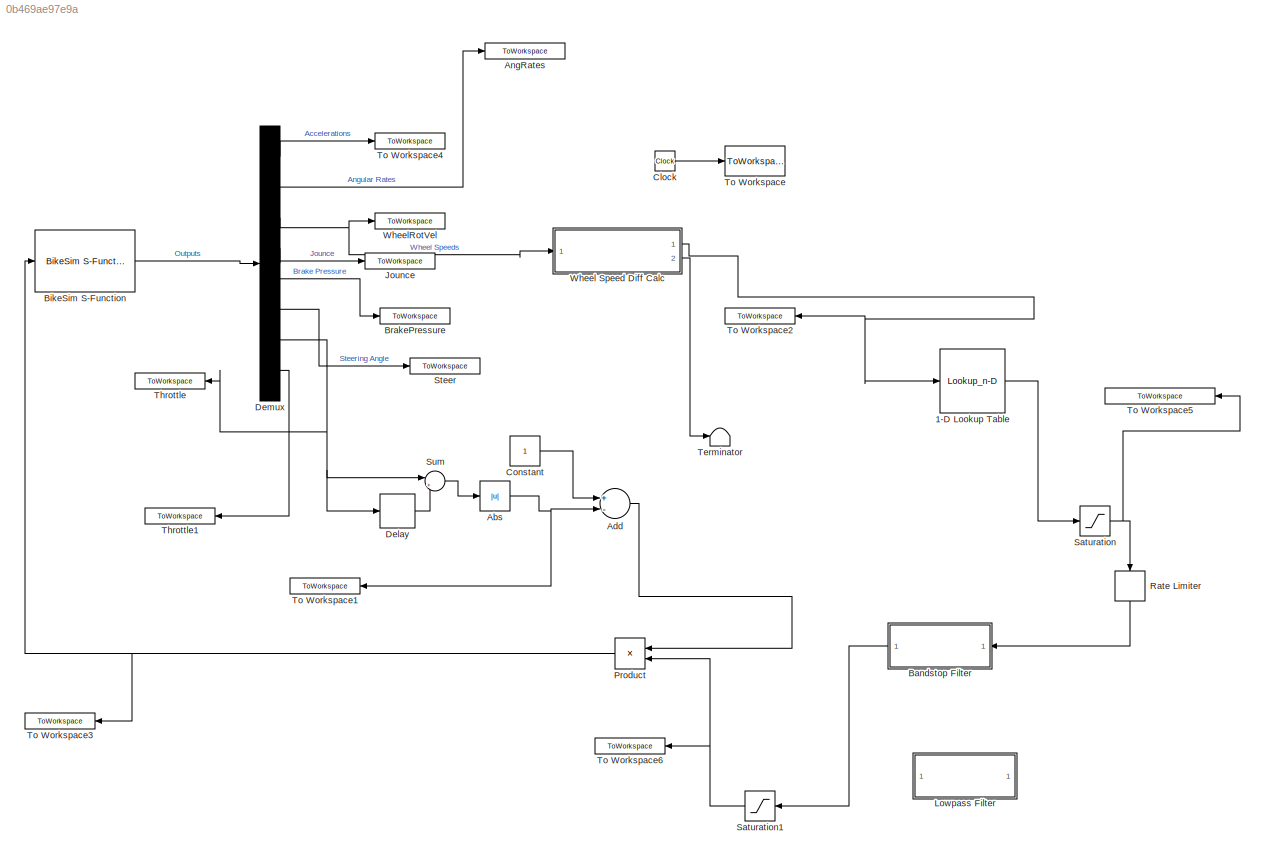
MODEL slx_0b469ae97e9a
KIND model
BLOCK [Lookup_n-D] 1-D Lookup Table
  BreakpointsForDimension1 = [3.5,4.5]
  BreakpointsForDimension2 = [0, 2 ,100,1000]
  InternalRulePriority = Speed
  NumberOfTableDimensions = 1
  Ports = [1, 1]
  RndMeth = Simplest
  Table = [1,0]
BLOCK [Abs] Abs
  SaturateOnIntegerOverflow = off
BLOCK [Sum] Add
  InputSameDT = off
  Inputs = +-
  OutDataTypeStr = Inherit: Inherit via internal rule
  Ports = [2, 1]
  SaturateOnIntegerOverflow = off
BLOCK [ToWorkspace] AngRates
  FixptAsFi = on
  MaxDataPoints = inf
  Ports = [1]
  SampleTime = -1
  Save2DSignal = 3-D array (concatenate along third dimension)
  SaveFormat = Timeseries
  VariableName = AngRates
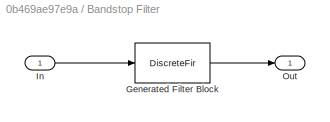
BLOCK [SubSystem] Bandstop Filter
  CopyFcn = fdesignblkfcn(gcbh, {'CopyFcn'});
  DialogController = fdesignblkfcn
  InitFcn = fdesignblkfcn(gcbh, {'InitFcn'});
  Ports = [1, 1]
  RequestExecContextInheritance = off
  UserDataPersistent = on
BLOCK [DiscreteFir] Bandstop Filter/Generated Filter Block
  Coefficients = [-8.5482507973099828e-06 0.0028889633483420852 1.0814930644075384e-05 0.044841500985625955 -5.4668016452838353e-07 -0.013920546923225289 -1.2165002407744266e-05 -0.10727125660163835 2.071325320463912e-05 0.27257409150791967 -1.0268250479218759e-05 0.64877449009571175 -1.0268250479218759e-05 0.27257409150791967 2.071325320463912e-05 -0.10727125660163835 -1.2165002407744266e-05 -0.013920546923225289...<+115ch>
  InputProcessing = Columns as channels (frame based)
  Ports = [1, 1]
  Tag = BlockMethodSubSystem
BLOCK [Inport] Bandstop Filter/In
  IconDisplay = Port number
BLOCK [Outport] Bandstop Filter/Out
  IconDisplay = Port number
BLOCK [Reference] BikeSim S-Function  REF=Solver_SF/BikeSim S-Function
  AttributesFormatString = Vehicle Code: %<VehicleCode>
  Ports = [1, 1]
  Priority = 1
  SIMFILE = simfile.sim
  SourceBlock = Solver_SF/BikeSim S-Function
  SourceType = Vehicle math model library
  VehicleCode = fixed_caster
BLOCK [ToWorkspace] BrakePressure
  FixptAsFi = on
  MaxDataPoints = inf
  Ports = [1]
  SampleTime = -1
  Save2DSignal = 3-D array (concatenate along third dimension)
  SaveFormat = Timeseries
  VariableName = BrakePressure
BLOCK [Clock] Clock
BLOCK [Constant] Constant
BLOCK [Delay] Delay
  DelayLength = 1
  InitialCondition = 0
  InputPortMap = u0
  Ports = [1, 1]
BLOCK [Demux] Demux
  Outputs = [3 2 2 2 2 1 1 3]
  Ports = [1, 8]
BLOCK [ToWorkspace] Jounce
  FixptAsFi = on
  MaxDataPoints = inf
  Ports = [1]
  SampleTime = -1
  Save2DSignal = 3-D array (concatenate along third dimension)
  SaveFormat = Timeseries
  VariableName = Jounce
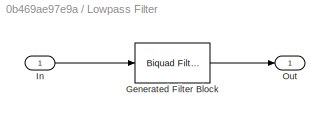
BLOCK [SubSystem] Lowpass Filter
  CopyFcn = fdesignblkfcn(gcbh, {'CopyFcn'});
  DialogController = fdesignblkfcn
  InitFcn = fdesignblkfcn(gcbh, {'InitFcn'});
  Ports = [1, 1]
  RequestExecContextInheritance = off
  UserDataPersistent = on
BLOCK [Reference] Lowpass Filter/Generated Filter Block  REF=dsparch4/Biquad Filter
  BiQuadCoeffs = [0.35230146550854152 0.70460293101708305 0.35230146550854152 1 -0.18062861276293468 0.53038926211178405;0.37244578900933756 0.74489157801867512 0.37244578900933756 1 -0.13693336440674406 0.16017804326471285;0.29855268988135275 0.5971053797627055 0.29855268988135275 1 -0.12032531746022769 0.019465138909104326;0.47159705718998224 0.47159705718998224 0 1 -0.059220912888930811 0;0.28757913514155453 0....<+898ch>
  CoeffSource = Specify via dialog
  FilterSource = Specify via dialog
  IC = 0
  ICden = 0
  ICnum = 0
  IIRFiltStruct = Direct form II
  InputProcessing = Columns as channels (frame based)
  LockScale = off
  Ports = [1, 1]
  ScaleValueMode = Specify via input port (g)
  ScaleValues = [0.46598578007750174;1;1;1;1;1;1;1;1;1;1;1;1;1]
  SourceBlock = dsparch4/Biquad Filter
  SourceType = Biquad Filter
  Tag = BlockMethodSubSystem
  UserDataPersistent = on
  a0Flag = Warning
  accumFracLength = 30
  accumMode = Same as product output
  accumWordLength = 32
  allowOverrides = on
  denAccumFracLength = 30
  denProdOutputFracLength = 30
  dfiltObjectName = dfilt.df2tsos([1 0.3 0.4],[1 0.1 0.2])
  firstCoeffFracLength = 15
  firstCoeffMode = Same word length as input
  firstCoeffWordLength = 16
  memoryFracLength = 15
  memoryMode = Same as accumulator
  memoryWordLength = 16
  multiplicandFracLength = 30
  multiplicandMode = Same as output
  multiplicandWordLength = 32
  optimizeScaleValues = off
  outputFracLength = 15
  outputMode = Same as accumulator
  outputWordLength = 16
  overflowMode = off
  prodOutputFracLength = 30
  prodOutputMode = Same as input
  prodOutputWordLength = 32
  roundingMode = Floor
  scaleValueFracLength = 14
  secondCoeffFracLength = 15
  secondCoeffMode = Same as numerator
  secondCoeffWordLength = 16
  secondMemoryFracLength = 15
  stageInputFracLength = 15
  stageInputMode = Same as input
  stageInputWordLength = 16
  stageOutputFracLength = 15
  stageOutputMode = Same as section input
  stageOutputWordLength = 16
BLOCK [Inport] Lowpass Filter/In
  IconDisplay = Port number
BLOCK [Outport] Lowpass Filter/Out
  IconDisplay = Port number
BLOCK [Product] Product
  InputSameDT = off
  OutDataTypeStr = Inherit: Inherit via internal rule
  Ports = [2, 1]
  RndMeth = Floor
  SaturateOnIntegerOverflow = off
BLOCK [RateLimiter] Rate Limiter
  FallingSlewLimit = -725
  RisingSlewLimit = 200
  SampleTimeMode = inherited
BLOCK [Saturate] Saturation
  InputPortMap = u0
  LowerLimit = 0
  Ports = [1, 1]
  UpperLimit = 1
BLOCK [Saturate] Saturation1
  InputPortMap = u0
  LowerLimit = 0
  Ports = [1, 1]
  UpperLimit = 1
BLOCK [ToWorkspace] Steer
  FixptAsFi = on
  MaxDataPoints = inf
  Ports = [1]
  SampleTime = -1
  Save2DSignal = 3-D array (concatenate along third dimension)
  SaveFormat = Timeseries
  VariableName = Steer
BLOCK [Sum] Sum
  IconShape = round
  InputSameDT = off
  Inputs = |+-
  OutDataTypeStr = Inherit: Inherit via internal rule
  Ports = [2, 1]
  SaturateOnIntegerOverflow = off
BLOCK [Terminator] Terminator
BLOCK [ToWorkspace] Throttle
  FixptAsFi = on
  MaxDataPoints = inf
  Ports = [1]
  SampleTime = -1
  Save2DSignal = 3-D array (concatenate along third dimension)
  SaveFormat = Timeseries
  VariableName = ThrottleOut
BLOCK [ToWorkspace] Throttle1
  FixptAsFi = on
  MaxDataPoints = inf
  Ports = [1]
  SampleTime = -1
  Save2DSignal = 3-D array (concatenate along third dimension)
  SaveFormat = Timeseries
  VariableName = Torque
BLOCK [ToWorkspace] To Workspace
  FixptAsFi = on
  MaxDataPoints = inf
  Ports = [1]
  SampleTime = -1
  Save2DSignal = 3-D array (concatenate along third dimension)
  VariableName = t
BLOCK [ToWorkspace] To Workspace1
  FixptAsFi = on
  MaxDataPoints = inf
  Ports = [1]
  SampleTime = -1
  Save2DSignal = 3-D array (concatenate along third dimension)
  SaveFormat = Timeseries
  VariableName = ThrottleDiff
BLOCK [ToWorkspace] To Workspace2
  FixptAsFi = on
  MaxDataPoints = inf
  Ports = [1]
  SampleTime = -1
  Save2DSignal = 3-D array (concatenate along third dimension)
  SaveFormat = Timeseries
  VariableName = WheelSpeedDiff
BLOCK [ToWorkspace] To Workspace3
  FixptAsFi = on
  MaxDataPoints = inf
  Ports = [1]
  SampleTime = -1
  Save2DSignal = 3-D array (concatenate along third dimension)
  SaveFormat = Timeseries
  VariableName = ScaleIn
BLOCK [ToWorkspace] To Workspace4
  FixptAsFi = on
  MaxDataPoints = inf
  Ports = [1]
  SampleTime = -1
  Save2DSignal = 3-D array (concatenate along third dimension)
  SaveFormat = Timeseries
  VariableName = Accelerations
BLOCK [ToWorkspace] To Workspace5
  FixptAsFi = on
  MaxDataPoints = inf
  Ports = [1]
  SampleTime = -1
  Save2DSignal = 3-D array (concatenate along third dimension)
  SaveFormat = Timeseries
  VariableName = WheelDiffLookupOut
BLOCK [ToWorkspace] To Workspace6
  FixptAsFi = on
  MaxDataPoints = inf
  Ports = [1]
  SampleTime = -1
  Save2DSignal = 3-D array (concatenate along third dimension)
  SaveFormat = Timeseries
  VariableName = Filtered
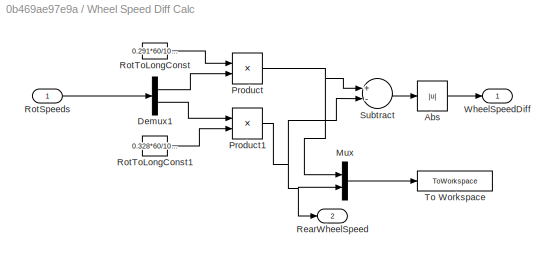
BLOCK [SubSystem] Wheel Speed Diff Calc
  Ports = [1, 2]
  RequestExecContextInheritance = off
BLOCK [Abs] Wheel Speed Diff Calc/Abs
  SaturateOnIntegerOverflow = off
BLOCK [Demux] Wheel Speed Diff Calc/Demux1
  DisplayOption = bar
  Outputs = 2
  Ports = [1, 2]
BLOCK [Mux] Wheel Speed Diff Calc/Mux
  DisplayOption = bar
  Inputs = 2
  Ports = [2, 1]
BLOCK [Product] Wheel Speed Diff Calc/Product
  InputSameDT = off
  OutDataTypeStr = Inherit: Inherit via internal rule
  Ports = [2, 1]
  RndMeth = Floor
  SaturateOnIntegerOverflow = off
BLOCK [Product] Wheel Speed Diff Calc/Product1
  InputSameDT = off
  OutDataTypeStr = Inherit: Inherit via internal rule
  Ports = [2, 1]
  RndMeth = Floor
  SaturateOnIntegerOverflow = off
BLOCK [Outport] Wheel Speed Diff Calc/RearWheelSpeed
  IconDisplay = Port number
  Port = 2
BLOCK [Inport] Wheel Speed Diff Calc/RotSpeeds
  IconDisplay = Port number
BLOCK [Constant] Wheel Speed Diff Calc/RotToLongConst
  Value = 0.291*60/1000*2*pi
BLOCK [Constant] Wheel Speed Diff Calc/RotToLongConst1
  Value = 0.328*60/1000*2*pi
BLOCK [Sum] Wheel Speed Diff Calc/Subtract
  InputSameDT = off
  Inputs = +-
  OutDataTypeStr = Inherit: Inherit via internal rule
  Ports = [2, 1]
  SaturateOnIntegerOverflow = off
BLOCK [ToWorkspace] Wheel Speed Diff Calc/To Workspace
  FixptAsFi = on
  MaxDataPoints = inf
  Ports = [1]
  SampleTime = -1
  Save2DSignal = 3-D array (concatenate along third dimension)
  SaveFormat = Timeseries
  VariableName = WheelLongVel
BLOCK [Outport] Wheel Speed Diff Calc/WheelSpeedDiff
  IconDisplay = Port number
BLOCK [ToWorkspace] WheelRotVel
  FixptAsFi = on
  MaxDataPoints = inf
  Ports = [1]
  SampleTime = -1
  Save2DSignal = 3-D array (concatenate along third dimension)
  SaveFormat = Timeseries
  VariableName = WheelRotVel
LINE 1-D Lookup Table:1 -> Saturation:1
NET Abs:1 -> Add:2, To Workspace1:1
LINE Add:1 -> Product:1
LINE Bandstop Filter:1 -> Saturation1:1
LINE BikeSim S-Function:1 -> Demux:1
LINE Clock:1 -> To Workspace:1
LINE Constant:1 -> Add:1
LINE Delay:1 -> Sum:2
LINE Demux:1 -> To Workspace4:1
LINE Demux:2 -> AngRates:1
NET Demux:3 -> Wheel Speed Diff Calc:1, WheelRotVel:1
LINE Demux:4 -> Jounce:1
LINE Demux:5 -> BrakePressure:1
LINE Demux:6 -> Steer:1
NET Demux:7 -> Delay:1, Sum:1, Throttle:1
LINE Demux:8 -> Throttle1:1
NET Product:1 -> BikeSim S-Function:1, To Workspace3:1
LINE Rate Limiter:1 -> Bandstop Filter:1
NET Saturation1:1 -> Product:2, To Workspace6:1
NET Saturation:1 -> Rate Limiter:1, To Workspace5:1
LINE Sum:1 -> Abs:1
LINE Wheel Speed Diff Calc/Abs:1 -> Wheel Speed Diff Calc/WheelSpeedDiff:1
LINE Wheel Speed Diff Calc/Demux1:1 -> Wheel Speed Diff Calc/Product:2
LINE Wheel Speed Diff Calc/Demux1:2 -> Wheel Speed Diff Calc/Product1:1
LINE Wheel Speed Diff Calc/Mux:1 -> Wheel Speed Diff Calc/To Workspace:1
NET Wheel Speed Diff Calc/Product1:1 -> Wheel Speed Diff Calc/Mux:2, Wheel Speed Diff Calc/RearWheelSpeed:1, Wheel Speed Diff Calc/Subtract:2
NET Wheel Speed Diff Calc/Product:1 -> Wheel Speed Diff Calc/Mux:1, Wheel Speed Diff Calc/Subtract:1
LINE Wheel Speed Diff Calc/RotSpeeds:1 -> Wheel Speed Diff Calc/Demux1:1
LINE Wheel Speed Diff Calc/RotToLongConst1:1 -> Wheel Speed Diff Calc/Product1:2
LINE Wheel Speed Diff Calc/RotToLongConst:1 -> Wheel Speed Diff Calc/Product:1
LINE Wheel Speed Diff Calc/Subtract:1 -> Wheel Speed Diff Calc/Abs:1
NET Wheel Speed Diff Calc:1 -> 1-D Lookup Table:1, To Workspace2:1
LINE Wheel Speed Diff Calc:2 -> Terminator:1
note: NET lines group one-source signal fan-out (src -> all destinations, sorted); 1:1 wires keep LINE
